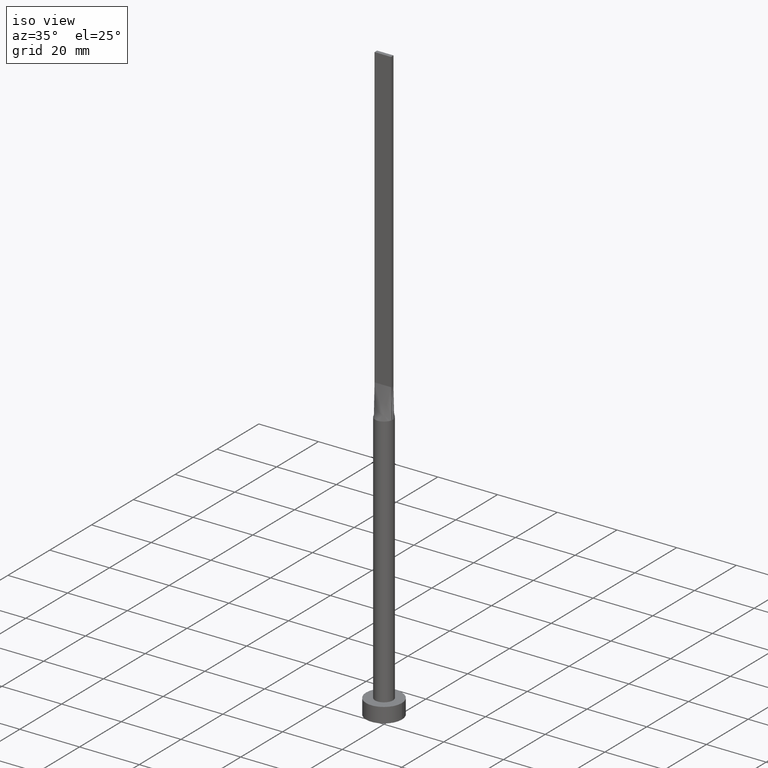
[diagram: clean part render]
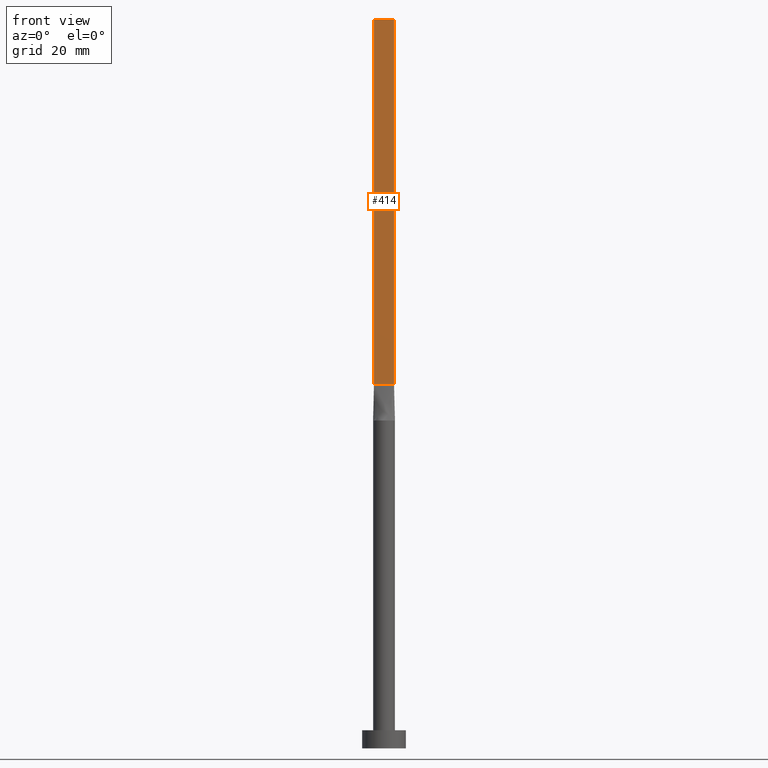
[diagram: tour spotlight — one face highlighted and labeled with its STEP entity id]
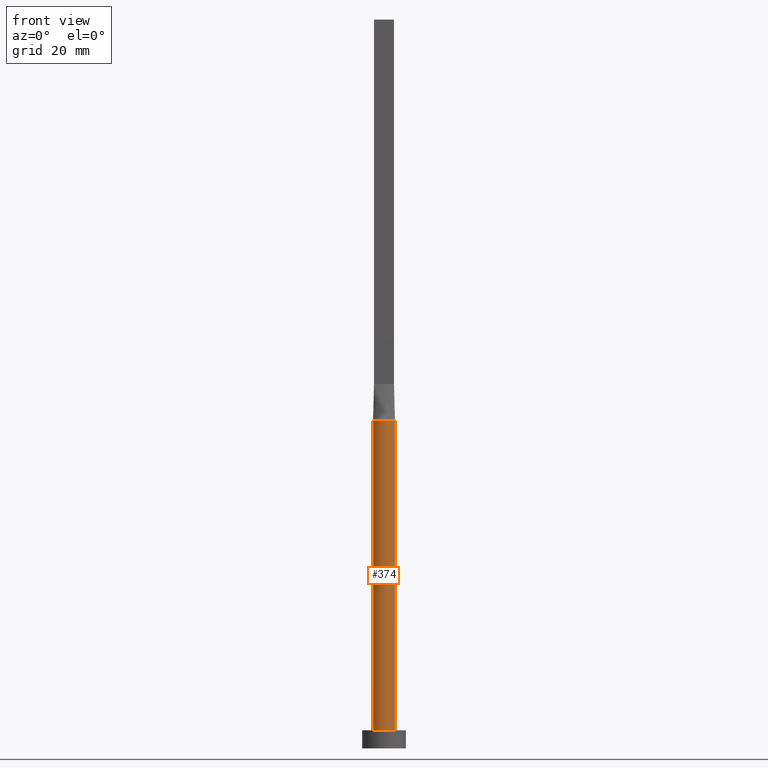
[diagram: tour spotlight — one face highlighted and labeled with its STEP entity id]
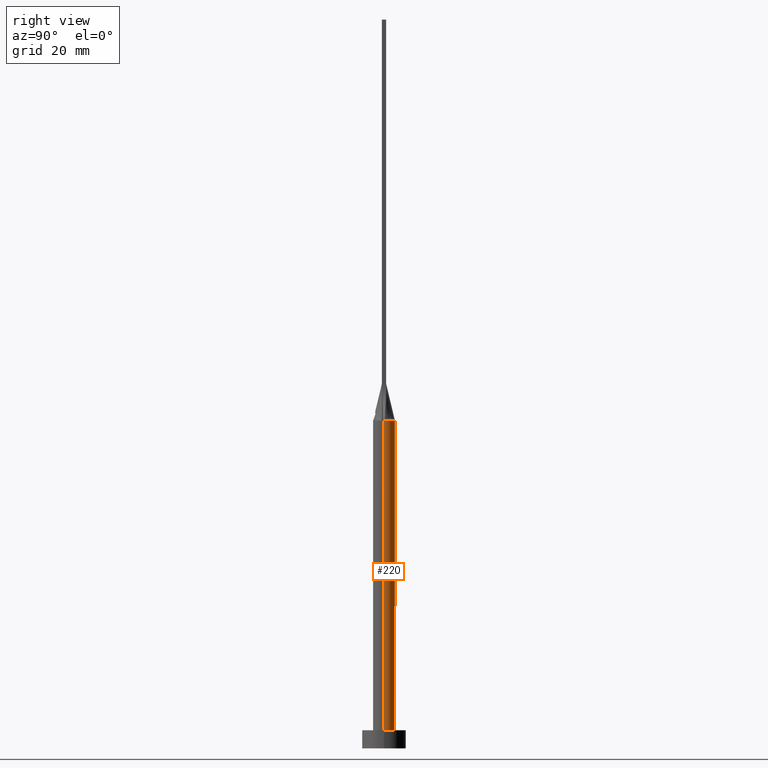
[diagram: tour spotlight — one face highlighted and labeled with its STEP entity id]
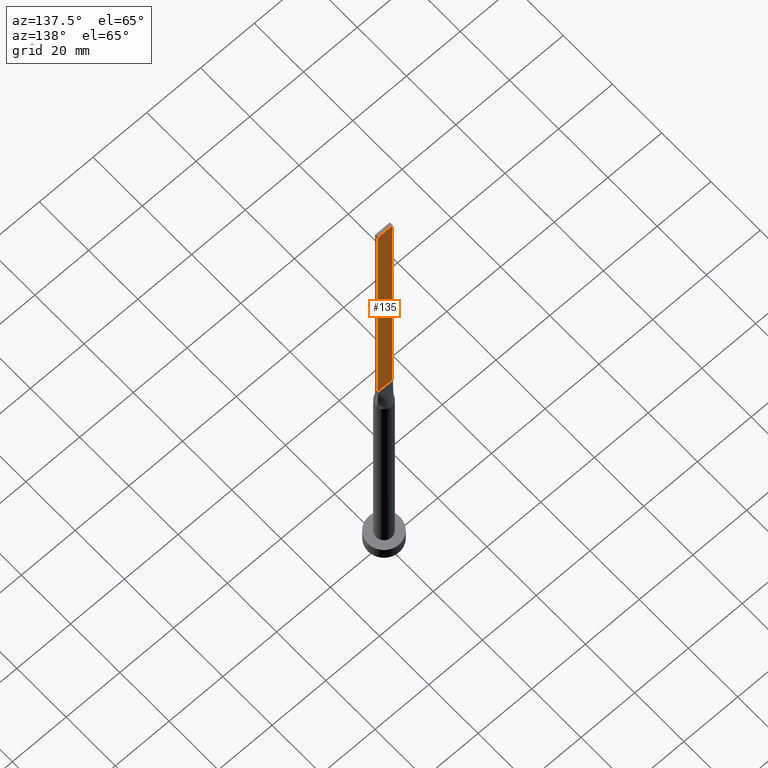
[diagram: tour spotlight — one face highlighted and labeled with its STEP entity id]
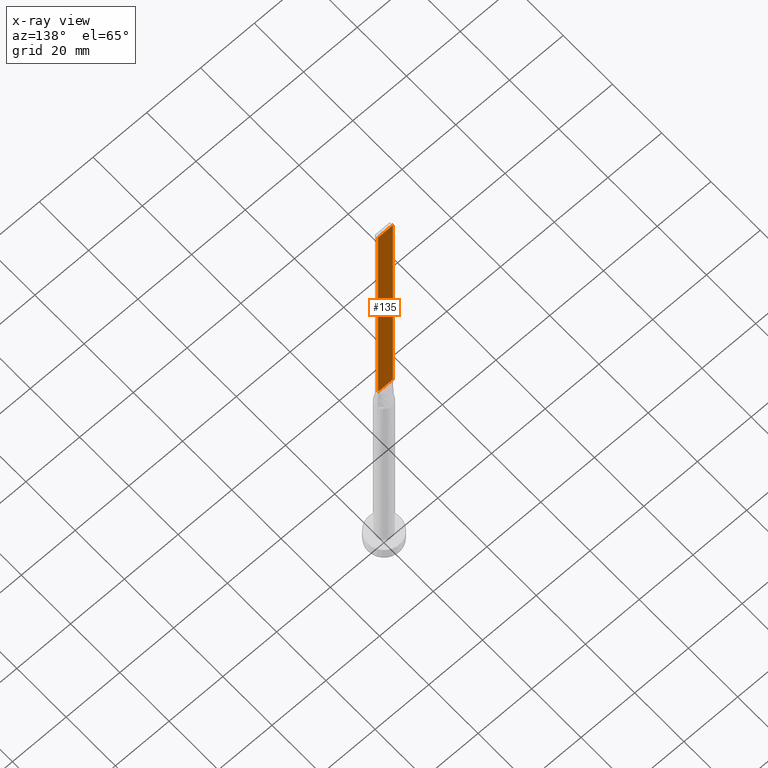
[diagram: x-ray of the same camera — body ghosted, this tour face saturated]
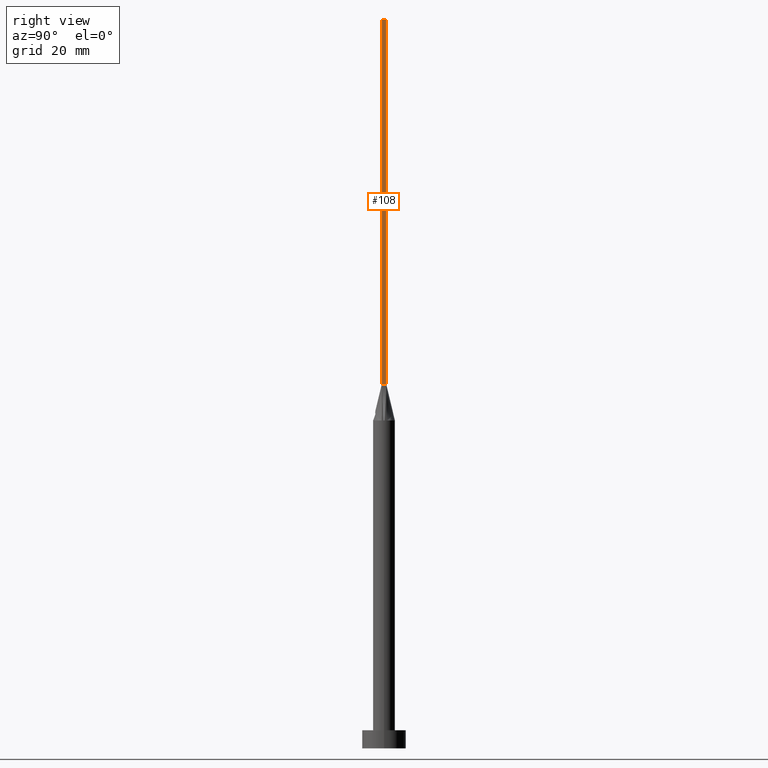
[diagram: tour spotlight — one face highlighted and labeled with its STEP entity id]
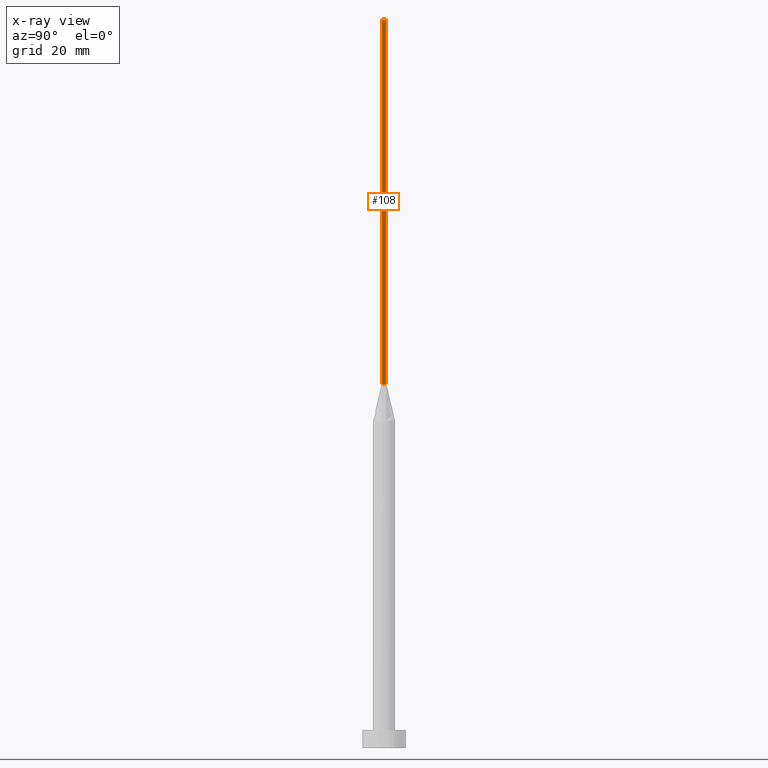
[diagram: x-ray of the same camera — body ghosted, this tour face saturated]
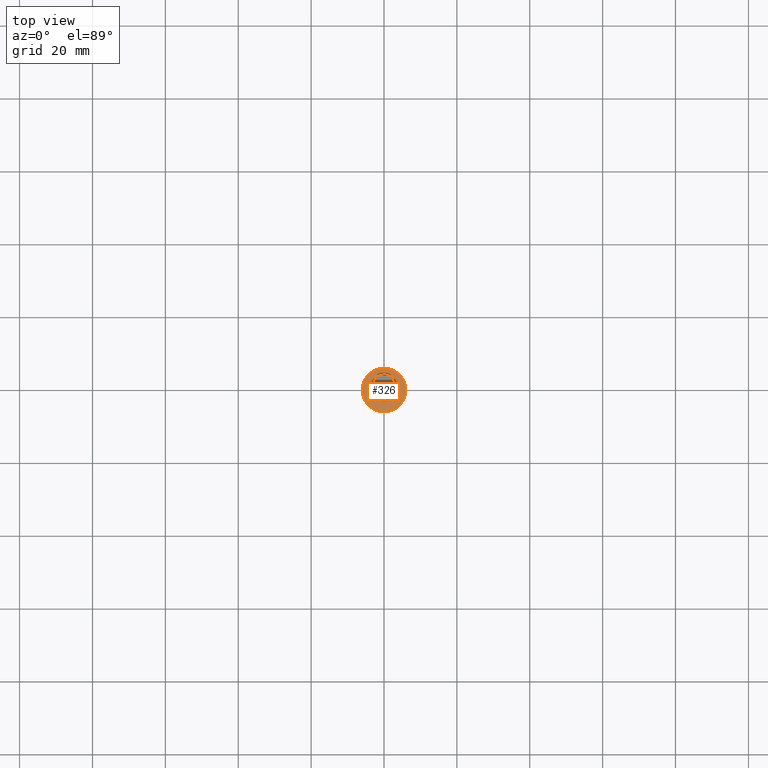
[diagram: tour spotlight — one face highlighted and labeled with its STEP entity id]
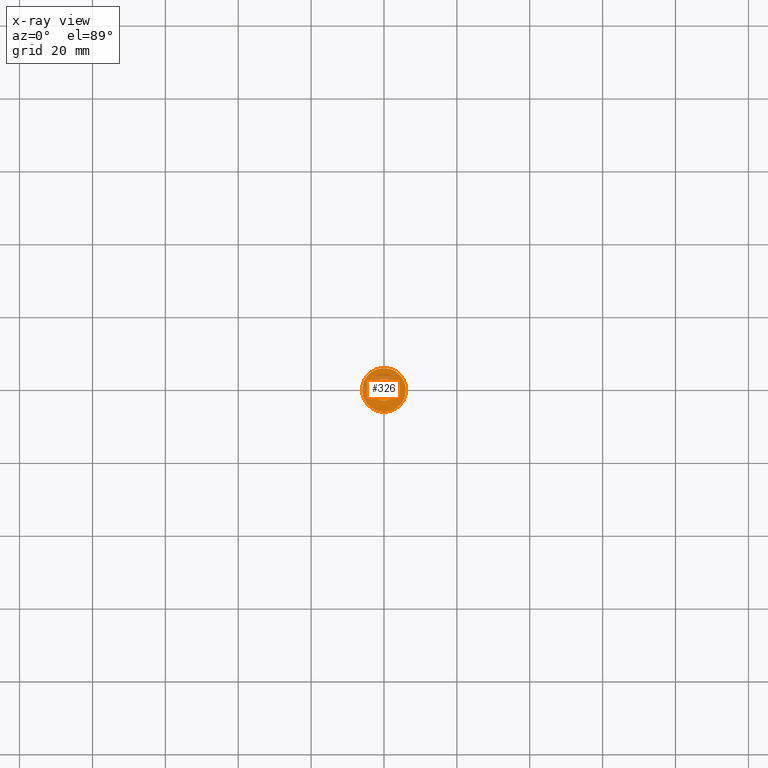
[diagram: x-ray of the same camera — body ghosted, this tour face saturated]
A machine part: a face-by-face anatomy tour. The part has 15 B-rep faces; the first image is the clean iso view, then the 6 largest visible faces are spotlighted one at a time (largest first), each with its STEP entity span.

Face 1 — front view, entity #414. In plain terms, the highlighted planar face has unit normal (0, 1, -0).
Definition (entity closure, byte-faithful):
#20 = VECTOR ( 'NONE', #99, 1000.000000000000000 ) ;
#29 = FACE_OUTER_BOUND ( 'NONE', #100, .T. ) ;
#33 = CARTESIAN_POINT ( 'NONE',  ( -2.750000000000000000, -0.5999999999999994227, 100.0000000000000000 ) ) ;
#43 = CARTESIAN_POINT ( 'NONE',  ( 2.750000000000000000, -0.5999999999999997558, 200.0000000000000000 ) ) ;
#80 = LINE ( 'NONE', #33, #411 ) ;
#99 = DIRECTION ( 'NONE',  ( -0.000000000000000000, -0.000000000000000000, -1.000000000000000000 ) ) ;
#100 = EDGE_LOOP ( 'NONE', ( #385, #327, #164, #496 ) ) ;
#164 = ORIENTED_EDGE ( 'NONE', *, *, #207, .F. ) ;
#179 = PLANE ( 'NONE',  #305 ) ;
#191 = CARTESIAN_POINT ( 'NONE',  ( -2.750000000000000000, -0.5999999999999994227, 200.0000000000000000 ) ) ;
#193 = VECTOR ( 'NONE', #508, 1000.000000000000000 ) ;
#197 = LINE ( 'NONE', #578, #283 ) ;
#198 = VERTEX_POINT ( 'NONE', #191 ) ;
#203 = VERTEX_POINT ( 'NONE', #43 ) ;
#207 = EDGE_CURVE ( 'NONE', #198, #203, #197, .T. ) ;
#214 = EDGE_CURVE ( 'NONE', #198, #433, #291, .T. ) ;
#251 = VERTEX_POINT ( 'NONE', #287 ) ;
#278 = EDGE_CURVE ( 'NONE', #203, #251, #384, .T. ) ;
#283 = VECTOR ( 'NONE', #367, 1000.000000000000000 ) ;
#287 = CARTESIAN_POINT ( 'NONE',  ( 2.750000000000000000, -0.5999999999999997558, 100.0000000000000000 ) ) ;
#291 = LINE ( 'NONE', #489, #20 ) ;
#299 = DIRECTION ( 'NONE',  ( 5.913830031739115543E-17, 1.000000000000000000, -0.000000000000000000 ) ) ;
#305 = AXIS2_PLACEMENT_3D ( 'NONE', #432, #299, #436 ) ;
#327 = ORIENTED_EDGE ( 'NONE', *, *, #278, .F. ) ;
#333 = EDGE_CURVE ( 'NONE', #433, #251, #80, .T. ) ;
#367 = DIRECTION ( 'NONE',  ( 1.000000000000000000, -5.913830031739115543E-17, 0.000000000000000000 ) ) ;
#384 = LINE ( 'NONE', #427, #193 ) ;
#385 = ORIENTED_EDGE ( 'NONE', *, *, #333, .T. ) ;
#411 = VECTOR ( 'NONE', #531, 1000.000000000000000 ) ;
#414 = ADVANCED_FACE ( 'NONE', ( #29 ), #179, .F. ) ;
#427 = CARTESIAN_POINT ( 'NONE',  ( 2.750000000000000000, -0.5999999999999997558, 200.0000000000000000 ) ) ;
#432 = CARTESIAN_POINT ( 'NONE',  ( -2.750000000000000000, -0.5999999999999994227, 200.0000000000000000 ) ) ;
#433 = VERTEX_POINT ( 'NONE', #556 ) ;
#436 = DIRECTION ( 'NONE',  ( -1.000000000000000000, 5.913830031739115543E-17, 0.000000000000000000 ) ) ;
#489 = CARTESIAN_POINT ( 'NONE',  ( -2.750000000000000000, -0.5999999999999994227, 200.0000000000000000 ) ) ;
#496 = ORIENTED_EDGE ( 'NONE', *, *, #214, .T. ) ;
#508 = DIRECTION ( 'NONE',  ( -0.000000000000000000, -0.000000000000000000, -1.000000000000000000 ) ) ;
#531 = DIRECTION ( 'NONE',  ( 1.000000000000000000, -5.913830031739115543E-17, 0.000000000000000000 ) ) ;
#556 = CARTESIAN_POINT ( 'NONE',  ( -2.750000000000000000, -0.5999999999999994227, 100.0000000000000000 ) ) ;
#578 = CARTESIAN_POINT ( 'NONE',  ( -2.750000000000000000, -0.5999999999999994227, 200.0000000000000000 ) ) ;

Face 2 — front view, entity #374. In plain terms, the highlighted cylindrical surface (edge-blend (fillet) strip) has radius 3 mm, axis along (-0, -0, -1).
Definition (entity closure, byte-faithful):
#11 = VERTEX_POINT ( 'NONE', #250 ) ;
#31 = CARTESIAN_POINT ( 'NONE',  ( 0.000000000000000000, 0.000000000000000000, 90.00000000000001421 ) ) ;
#46 = CARTESIAN_POINT ( 'NONE',  ( 0.000000000000000000, 0.000000000000000000, 5.000000000000000000 ) ) ;
#48 = DIRECTION ( 'NONE',  ( 1.000000000000000000, 0.000000000000000000, 0.000000000000000000 ) ) ;
#49 = VERTEX_POINT ( 'NONE', #195 ) ;
#50 = ORIENTED_EDGE ( 'NONE', *, *, #98, .F. ) ;
#51 = VERTEX_POINT ( 'NONE', #200 ) ;
#57 = VERTEX_POINT ( 'NONE', #497 ) ;
#70 = EDGE_LOOP ( 'NONE', ( #50, #168, #534, #308, #510, #303 ) ) ;
#76 = EDGE_CURVE ( 'NONE', #339, #11, #406, .T. ) ;
#93 = LINE ( 'NONE', #491, #156 ) ;
#98 = EDGE_CURVE ( 'NONE', #178, #49, #93, .T. ) ;
#120 = DIRECTION ( 'NONE',  ( -0.000000000000000000, -0.000000000000000000, -1.000000000000000000 ) ) ;
#126 = EDGE_CURVE ( 'NONE', #51, #339, #148, .T. ) ;
#129 = DIRECTION ( 'NONE',  ( 1.000000000000000000, 0.000000000000000000, 0.000000000000000000 ) ) ;
#139 = AXIS2_PLACEMENT_3D ( 'NONE', #413, #239, #48 ) ;
#141 = DIRECTION ( 'NONE',  ( -0.000000000000000000, -0.000000000000000000, -1.000000000000000000 ) ) ;
#148 = CIRCLE ( 'NONE', #189, 3.000000000000000444 ) ;
#156 = VECTOR ( 'NONE', #141, 1000.000000000000000 ) ;
#159 = CARTESIAN_POINT ( 'NONE',  ( 0.000000000000000000, 0.000000000000000000, 90.00000000000001421 ) ) ;
#162 = VECTOR ( 'NONE', #485, 1000.000000000000000 ) ;
#168 = ORIENTED_EDGE ( 'NONE', *, *, #261, .F. ) ;
#178 = VERTEX_POINT ( 'NONE', #528 ) ;
#189 = AXIS2_PLACEMENT_3D ( 'NONE', #31, #219, #129 ) ;
#195 = CARTESIAN_POINT ( 'NONE',  ( 3.000000000000000444, 3.673940397442060361E-16, 5.000000000000000000 ) ) ;
#196 = CYLINDRICAL_SURFACE ( 'NONE', #521, 3.000000000000000444 ) ;
#200 = CARTESIAN_POINT ( 'NONE',  ( -2.999603793582328315, -7.025298958605770567E-16, 90.00000000000001421 ) ) ;
#219 = DIRECTION ( 'NONE',  ( 0.000000000000000000, 0.000000000000000000, 1.000000000000000000 ) ) ;
#227 = DIRECTION ( 'NONE',  ( 1.000000000000000000, 0.000000000000000000, 0.000000000000000000 ) ) ;
#236 = DIRECTION ( 'NONE',  ( 0.000000000000000000, 0.000000000000000000, 1.000000000000000000 ) ) ;
#239 = DIRECTION ( 'NONE',  ( 0.000000000000000000, 0.000000000000000000, 1.000000000000000000 ) ) ;
#250 = CARTESIAN_POINT ( 'NONE',  ( 2.931332910560268790, -0.6395638358681950963, 90.00000000000001421 ) ) ;
#252 = EDGE_CURVE ( 'NONE', #57, #49, #529, .T. ) ;
#261 = EDGE_CURVE ( 'NONE', #11, #178, #363, .T. ) ;
#286 = FACE_OUTER_BOUND ( 'NONE', #70, .T. ) ;
#296 = AXIS2_PLACEMENT_3D ( 'NONE', #46, #236, #227 ) ;
#303 = ORIENTED_EDGE ( 'NONE', *, *, #252, .T. ) ;
#308 = ORIENTED_EDGE ( 'NONE', *, *, #126, .F. ) ;
#324 = CARTESIAN_POINT ( 'NONE',  ( 0.000000000000000000, 0.000000000000000000, 90.00000000000001421 ) ) ;
#339 = VERTEX_POINT ( 'NONE', #378 ) ;
#348 = CARTESIAN_POINT ( 'NONE',  ( -3.000000000000000444, 0.000000000000000000, 90.00000000000001421 ) ) ;
#363 = CIRCLE ( 'NONE', #437, 3.000000000000000444 ) ;
#374 = ADVANCED_FACE ( 'NONE', ( #286 ), #196, .T. ) ;
#378 = CARTESIAN_POINT ( 'NONE',  ( -2.931315536094174057, -0.6395601373676296220, 90.00000000000001421 ) ) ;
#390 = DIRECTION ( 'NONE',  ( -1.000000000000000000, 0.000000000000000000, 0.000000000000000000 ) ) ;
#404 = DIRECTION ( 'NONE',  ( 0.000000000000000000, 0.000000000000000000, 1.000000000000000000 ) ) ;
#406 = CIRCLE ( 'NONE', #139, 3.000000000000000444 ) ;
#413 = CARTESIAN_POINT ( 'NONE',  ( 0.000000000000000000, 0.000000000000000000, 90.00000000000001421 ) ) ;
#437 = AXIS2_PLACEMENT_3D ( 'NONE', #324, #404, #572 ) ;
#485 = DIRECTION ( 'NONE',  ( -0.000000000000000000, -0.000000000000000000, -1.000000000000000000 ) ) ;
#491 = CARTESIAN_POINT ( 'NONE',  ( 3.000000000000000444, 3.673940397442060361E-16, 90.00000000000001421 ) ) ;
#495 = EDGE_CURVE ( 'NONE', #51, #57, #564, .T. ) ;
#497 = CARTESIAN_POINT ( 'NONE',  ( -3.000000000000000444, 0.000000000000000000, 5.000000000000000000 ) ) ;
#510 = ORIENTED_EDGE ( 'NONE', *, *, #495, .T. ) ;
#521 = AXIS2_PLACEMENT_3D ( 'NONE', #159, #120, #390 ) ;
#528 = CARTESIAN_POINT ( 'NONE',  ( 2.999603793582328759, 7.166726372340513095E-16, 90.00000000000001421 ) ) ;
#529 = CIRCLE ( 'NONE', #296, 3.000000000000000444 ) ;
#534 = ORIENTED_EDGE ( 'NONE', *, *, #76, .F. ) ;
#564 = LINE ( 'NONE', #348, #162 ) ;
#572 = DIRECTION ( 'NONE',  ( 1.000000000000000000, -8.881784197001252323E-15, 0.000000000000000000 ) ) ;

Face 3 — right view, entity #220. In plain terms, the highlighted cylindrical surface (edge-blend (fillet) strip) has radius 3 mm, axis along (-0, -0, -1).
Definition (entity closure, byte-faithful):
#1 = CARTESIAN_POINT ( 'NONE',  ( 2.878980386154874616, 0.8781411751610636029, 90.00000000000002842 ) ) ;
#10 = CARTESIAN_POINT ( 'NONE',  ( 1.829136458871247761, 2.402980488111650992, 89.99999999999997158 ) ) ;
#23 = CARTESIAN_POINT ( 'NONE',  ( -0.4026715616377299356, 2.999999999999999556, 89.99999999999998579 ) ) ;
#39 = EDGE_CURVE ( 'NONE', #178, #111, #565, .T. ) ;
#44 = CARTESIAN_POINT ( 'NONE',  ( 2.792624347712116872, 1.135030881087315979, 90.00000000000001421 ) ) ;
#45 = CARTESIAN_POINT ( 'NONE',  ( 0.000000000000000000, 0.000000000000000000, 5.000000000000000000 ) ) ;
#49 = VERTEX_POINT ( 'NONE', #195 ) ;
#51 = VERTEX_POINT ( 'NONE', #200 ) ;
#57 = VERTEX_POINT ( 'NONE', #497 ) ;
#64 = ORIENTED_EDGE ( 'NONE', *, *, #349, .T. ) ;
#71 = DIRECTION ( 'NONE',  ( 0.000000000000000000, 0.000000000000000000, 1.000000000000000000 ) ) ;
#81 = CIRCLE ( 'NONE', #160, 3.000000000000000444 ) ;
#84 = B_SPLINE_CURVE_WITH_KNOTS ( 'NONE', 3,
 ( #293, #1, #44, #415, #486, #10, #318, #235, #408, #23, #423, #204, #421, #259, #170, #331, #376, #543 ),
 .UNSPECIFIED., .F., .F.,
 ( 4, 2, 2, 2, 2, 2, 2, 2, 4 ),
 ( 0.000000000000000000, 0.1250000000000000000, 0.2500000000000000000, 0.3750000000000000000, 0.5000000000000000000, 0.6250000000000000000, 0.7500000000000000000, 0.8750000000000000000, 1.000000000000000000 ),
 .UNSPECIFIED. ) ;
#90 = CIRCLE ( 'NONE', #365, 3.000000000000000444 ) ;
#91 = DIRECTION ( 'NONE',  ( 1.000000000000000000, 0.000000000000000000, 0.000000000000000000 ) ) ;
#93 = LINE ( 'NONE', #491, #156 ) ;
#96 = DIRECTION ( 'NONE',  ( -0.000000000000000000, -0.000000000000000000, -1.000000000000000000 ) ) ;
#98 = EDGE_CURVE ( 'NONE', #178, #49, #93, .T. ) ;
#103 = EDGE_CURVE ( 'NONE', #111, #449, #84, .T. ) ;
#111 = VERTEX_POINT ( 'NONE', #311 ) ;
#133 = DIRECTION ( 'NONE',  ( 0.000000000000000000, 0.000000000000000000, 1.000000000000000000 ) ) ;
#141 = DIRECTION ( 'NONE',  ( -0.000000000000000000, -0.000000000000000000, -1.000000000000000000 ) ) ;
#152 = CYLINDRICAL_SURFACE ( 'NONE', #465, 3.000000000000000444 ) ;
#156 = VECTOR ( 'NONE', #141, 1000.000000000000000 ) ;
#160 = AXIS2_PLACEMENT_3D ( 'NONE', #45, #274, #91 ) ;
#162 = VECTOR ( 'NONE', #485, 1000.000000000000000 ) ;
#170 = CARTESIAN_POINT ( 'NONE',  ( -2.518011668798964653, 1.657305971825549840, 90.00000000000002842 ) ) ;
#172 = CARTESIAN_POINT ( 'NONE',  ( -2.931320679040856803, 0.6395611071856786012, 90.00000000000001421 ) ) ;
#178 = VERTEX_POINT ( 'NONE', #528 ) ;
#195 = CARTESIAN_POINT ( 'NONE',  ( 3.000000000000000444, 3.673940397442060361E-16, 5.000000000000000000 ) ) ;
#199 = FACE_OUTER_BOUND ( 'NONE', #344, .T. ) ;
#200 = CARTESIAN_POINT ( 'NONE',  ( -2.999603793582328315, -7.025298958605770567E-16, 90.00000000000001421 ) ) ;
#204 = CARTESIAN_POINT ( 'NONE',  ( -1.517787371616671654, 2.616501225271827380, 90.00000000000004263 ) ) ;
#220 = ADVANCED_FACE ( 'NONE', ( #199 ), #152, .T. ) ;
#234 = AXIS2_PLACEMENT_3D ( 'NONE', #520, #133, #524 ) ;
#235 = CARTESIAN_POINT ( 'NONE',  ( 0.8041209001220689379, 2.916015559847871863, 90.00000000000004263 ) ) ;
#259 = CARTESIAN_POINT ( 'NONE',  ( -2.328745122427008152, 1.922758842442225280, 89.99999999999997158 ) ) ;
#274 = DIRECTION ( 'NONE',  ( 0.000000000000000000, 0.000000000000000000, 1.000000000000000000 ) ) ;
#282 = DIRECTION ( 'NONE',  ( -1.000000000000000000, 0.000000000000000000, 0.000000000000000000 ) ) ;
#293 = CARTESIAN_POINT ( 'NONE',  ( 2.931303352270923757, 0.6395574164693091923, 90.00000000000001421 ) ) ;
#300 = ORIENTED_EDGE ( 'NONE', *, *, #98, .T. ) ;
#311 = CARTESIAN_POINT ( 'NONE',  ( 2.931303352270923757, 0.6395574164693091923, 90.00000000000001421 ) ) ;
#318 = CARTESIAN_POINT ( 'NONE',  ( 1.517787371616672099, 2.616501225271827824, 90.00000000000004263 ) ) ;
#331 = CARTESIAN_POINT ( 'NONE',  ( -2.792624347712117761, 1.135030881087315313, 90.00000000000001421 ) ) ;
#344 = EDGE_LOOP ( 'NONE', ( #539, #300, #64, #498, #506, #511 ) ) ;
#348 = CARTESIAN_POINT ( 'NONE',  ( -3.000000000000000444, 0.000000000000000000, 90.00000000000001421 ) ) ;
#349 = EDGE_CURVE ( 'NONE', #49, #57, #81, .T. ) ;
#364 = CARTESIAN_POINT ( 'NONE',  ( 0.000000000000000000, 0.000000000000000000, 90.00000000000001421 ) ) ;
#365 = AXIS2_PLACEMENT_3D ( 'NONE', #547, #71, #551 ) ;
#376 = CARTESIAN_POINT ( 'NONE',  ( -2.878980386154874616, 0.8781411751610629368, 90.00000000000005684 ) ) ;
#408 = CARTESIAN_POINT ( 'NONE',  ( 0.4026715616377294915, 2.999999999999999556, 90.00000000000001421 ) ) ;
#415 = CARTESIAN_POINT ( 'NONE',  ( 2.518011668798964209, 1.657305971825549840, 90.00000000000001421 ) ) ;
#421 = CARTESIAN_POINT ( 'NONE',  ( -1.829136458871247761, 2.402980488111649660, 89.99999999999998579 ) ) ;
#423 = CARTESIAN_POINT ( 'NONE',  ( -0.8041209001220690489, 2.916015559847871419, 90.00000000000002842 ) ) ;
#439 = EDGE_CURVE ( 'NONE', #449, #51, #90, .T. ) ;
#449 = VERTEX_POINT ( 'NONE', #172 ) ;
#465 = AXIS2_PLACEMENT_3D ( 'NONE', #364, #96, #282 ) ;
#485 = DIRECTION ( 'NONE',  ( -0.000000000000000000, -0.000000000000000000, -1.000000000000000000 ) ) ;
#486 = CARTESIAN_POINT ( 'NONE',  ( 2.328745122427009040, 1.922758842442225946, 90.00000000000000000 ) ) ;
#491 = CARTESIAN_POINT ( 'NONE',  ( 3.000000000000000444, 3.673940397442060361E-16, 90.00000000000001421 ) ) ;
#495 = EDGE_CURVE ( 'NONE', #51, #57, #564, .T. ) ;
#497 = CARTESIAN_POINT ( 'NONE',  ( -3.000000000000000444, 0.000000000000000000, 5.000000000000000000 ) ) ;
#498 = ORIENTED_EDGE ( 'NONE', *, *, #495, .F. ) ;
#506 = ORIENTED_EDGE ( 'NONE', *, *, #439, .F. ) ;
#511 = ORIENTED_EDGE ( 'NONE', *, *, #103, .F. ) ;
#520 = CARTESIAN_POINT ( 'NONE',  ( 0.000000000000000000, 0.000000000000000000, 90.00000000000001421 ) ) ;
#524 = DIRECTION ( 'NONE',  ( 1.000000000000000000, 0.000000000000000000, 0.000000000000000000 ) ) ;
#528 = CARTESIAN_POINT ( 'NONE',  ( 2.999603793582328759, 7.166726372340513095E-16, 90.00000000000001421 ) ) ;
#539 = ORIENTED_EDGE ( 'NONE', *, *, #39, .F. ) ;
#543 = CARTESIAN_POINT ( 'NONE',  ( -2.931320679040856803, 0.6395611071856786012, 90.00000000000001421 ) ) ;
#547 = CARTESIAN_POINT ( 'NONE',  ( 0.000000000000000000, 0.000000000000000000, 90.00000000000001421 ) ) ;
#551 = DIRECTION ( 'NONE',  ( 1.000000000000000000, 0.000000000000000000, 0.000000000000000000 ) ) ;
#564 = LINE ( 'NONE', #348, #162 ) ;
#565 = CIRCLE ( 'NONE', #234, 3.000000000000000444 ) ;

Face 4 — auxiliary view, entity #135. An x-ray twin of the same camera follows (body ghosted, this face saturated) — the face is partly hidden behind the body. In plain terms, the highlighted planar face has unit normal (0, -1, 0).
Definition (entity closure, byte-faithful):
#5 = ORIENTED_EDGE ( 'NONE', *, *, #288, .T. ) ;
#19 = DIRECTION ( 'NONE',  ( -1.000000000000000000, 0.000000000000000000, 0.000000000000000000 ) ) ;
#52 = VERTEX_POINT ( 'NONE', #284 ) ;
#135 = ADVANCED_FACE ( 'NONE', ( #398 ), #176, .F. ) ;
#149 = EDGE_LOOP ( 'NONE', ( #215, #285, #241, #5 ) ) ;
#173 = CARTESIAN_POINT ( 'NONE',  ( -2.750000000000000000, 0.6000000000000001998, 200.0000000000000000 ) ) ;
#176 = PLANE ( 'NONE',  #243 ) ;
#186 = DIRECTION ( 'NONE',  ( 0.000000000000000000, -0.000000000000000000, -1.000000000000000000 ) ) ;
#201 = VECTOR ( 'NONE', #271, 1000.000000000000000 ) ;
#215 = ORIENTED_EDGE ( 'NONE', *, *, #487, .T. ) ;
#221 = CARTESIAN_POINT ( 'NONE',  ( -2.750000000000000000, 0.6000000000000001998, 100.0000000000000000 ) ) ;
#241 = ORIENTED_EDGE ( 'NONE', *, *, #480, .F. ) ;
#243 = AXIS2_PLACEMENT_3D ( 'NONE', #484, #270, #186 ) ;
#245 = VERTEX_POINT ( 'NONE', #407 ) ;
#267 = VECTOR ( 'NONE', #301, 1000.000000000000000 ) ;
#268 = LINE ( 'NONE', #173, #409 ) ;
#270 = DIRECTION ( 'NONE',  ( 0.000000000000000000, -1.000000000000000000, 0.000000000000000000 ) ) ;
#271 = DIRECTION ( 'NONE',  ( -1.000000000000000000, -0.000000000000000000, -0.000000000000000000 ) ) ;
#276 = VECTOR ( 'NONE', #19, 1000.000000000000000 ) ;
#284 = CARTESIAN_POINT ( 'NONE',  ( -2.750000000000000000, 0.6000000000000001998, 100.0000000000000000 ) ) ;
#285 = ORIENTED_EDGE ( 'NONE', *, *, #320, .F. ) ;
#288 = EDGE_CURVE ( 'NONE', #545, #245, #420, .T. ) ;
#301 = DIRECTION ( 'NONE',  ( -0.000000000000000000, -0.000000000000000000, -1.000000000000000000 ) ) ;
#320 = EDGE_CURVE ( 'NONE', #419, #52, #268, .T. ) ;
#325 = CARTESIAN_POINT ( 'NONE',  ( 2.750000000000000000, 0.6000000000000001998, 200.0000000000000000 ) ) ;
#386 = CARTESIAN_POINT ( 'NONE',  ( -2.750000000000000000, 0.6000000000000001998, 200.0000000000000000 ) ) ;
#391 = DIRECTION ( 'NONE',  ( -0.000000000000000000, -0.000000000000000000, -1.000000000000000000 ) ) ;
#398 = FACE_OUTER_BOUND ( 'NONE', #149, .T. ) ;
#407 = CARTESIAN_POINT ( 'NONE',  ( 2.750000000000000000, 0.6000000000000001998, 100.0000000000000000 ) ) ;
#409 = VECTOR ( 'NONE', #391, 1000.000000000000000 ) ;
#419 = VERTEX_POINT ( 'NONE', #386 ) ;
#420 = LINE ( 'NONE', #325, #267 ) ;
#426 = CARTESIAN_POINT ( 'NONE',  ( 2.750000000000000000, 0.6000000000000001998, 200.0000000000000000 ) ) ;
#441 = LINE ( 'NONE', #221, #201 ) ;
#480 = EDGE_CURVE ( 'NONE', #545, #419, #502, .T. ) ;
#484 = CARTESIAN_POINT ( 'NONE',  ( 2.750000000000000000, 0.6000000000000001998, 200.0000000000000000 ) ) ;
#487 = EDGE_CURVE ( 'NONE', #245, #52, #441, .T. ) ;
#502 = LINE ( 'NONE', #426, #276 ) ;
#545 = VERTEX_POINT ( 'NONE', #560 ) ;
#560 = CARTESIAN_POINT ( 'NONE',  ( 2.750000000000000000, 0.6000000000000001998, 200.0000000000000000 ) ) ;

Face 5 — right view, entity #108. An x-ray twin of the same camera follows (body ghosted, this face saturated) — the face is partly hidden behind the body. In plain terms, the highlighted planar face has unit normal (-1, 0, 0).
Definition (entity closure, byte-faithful):
#4 = CARTESIAN_POINT ( 'NONE',  ( 2.750000000000000000, 0.6000000000000001998, 100.0000000000000000 ) ) ;
#6 = CARTESIAN_POINT ( 'NONE',  ( 2.750000000000000000, -0.5999999999999997558, 200.0000000000000000 ) ) ;
#16 = ORIENTED_EDGE ( 'NONE', *, *, #240, .F. ) ;
#18 = PLANE ( 'NONE',  #87 ) ;
#43 = CARTESIAN_POINT ( 'NONE',  ( 2.750000000000000000, -0.5999999999999997558, 200.0000000000000000 ) ) ;
#62 = DIRECTION ( 'NONE',  ( -1.000000000000000000, 0.000000000000000000, 0.000000000000000000 ) ) ;
#87 = AXIS2_PLACEMENT_3D ( 'NONE', #206, #62, #428 ) ;
#102 = EDGE_LOOP ( 'NONE', ( #471, #368, #16, #493 ) ) ;
#108 = ADVANCED_FACE ( 'NONE', ( #501 ), #18, .F. ) ;
#116 = VECTOR ( 'NONE', #147, 1000.000000000000000 ) ;
#140 = DIRECTION ( 'NONE',  ( -0.000000000000000000, 1.000000000000000000, -0.000000000000000000 ) ) ;
#147 = DIRECTION ( 'NONE',  ( 0.000000000000000000, 1.000000000000000000, 0.000000000000000000 ) ) ;
#182 = EDGE_CURVE ( 'NONE', #251, #245, #238, .T. ) ;
#193 = VECTOR ( 'NONE', #508, 1000.000000000000000 ) ;
#203 = VERTEX_POINT ( 'NONE', #43 ) ;
#206 = CARTESIAN_POINT ( 'NONE',  ( 2.750000000000000000, -0.5999999999999997558, 200.0000000000000000 ) ) ;
#238 = LINE ( 'NONE', #4, #517 ) ;
#240 = EDGE_CURVE ( 'NONE', #203, #545, #533, .T. ) ;
#245 = VERTEX_POINT ( 'NONE', #407 ) ;
#251 = VERTEX_POINT ( 'NONE', #287 ) ;
#267 = VECTOR ( 'NONE', #301, 1000.000000000000000 ) ;
#278 = EDGE_CURVE ( 'NONE', #203, #251, #384, .T. ) ;
#287 = CARTESIAN_POINT ( 'NONE',  ( 2.750000000000000000, -0.5999999999999997558, 100.0000000000000000 ) ) ;
#288 = EDGE_CURVE ( 'NONE', #545, #245, #420, .T. ) ;
#301 = DIRECTION ( 'NONE',  ( -0.000000000000000000, -0.000000000000000000, -1.000000000000000000 ) ) ;
#325 = CARTESIAN_POINT ( 'NONE',  ( 2.750000000000000000, 0.6000000000000001998, 200.0000000000000000 ) ) ;
#368 = ORIENTED_EDGE ( 'NONE', *, *, #288, .F. ) ;
#384 = LINE ( 'NONE', #427, #193 ) ;
#407 = CARTESIAN_POINT ( 'NONE',  ( 2.750000000000000000, 0.6000000000000001998, 100.0000000000000000 ) ) ;
#420 = LINE ( 'NONE', #325, #267 ) ;
#427 = CARTESIAN_POINT ( 'NONE',  ( 2.750000000000000000, -0.5999999999999997558, 200.0000000000000000 ) ) ;
#428 = DIRECTION ( 'NONE',  ( 0.000000000000000000, 0.000000000000000000, 1.000000000000000000 ) ) ;
#471 = ORIENTED_EDGE ( 'NONE', *, *, #182, .T. ) ;
#493 = ORIENTED_EDGE ( 'NONE', *, *, #278, .T. ) ;
#501 = FACE_OUTER_BOUND ( 'NONE', #102, .T. ) ;
#508 = DIRECTION ( 'NONE',  ( -0.000000000000000000, -0.000000000000000000, -1.000000000000000000 ) ) ;
#517 = VECTOR ( 'NONE', #140, 1000.000000000000000 ) ;
#533 = LINE ( 'NONE', #6, #116 ) ;
#545 = VERTEX_POINT ( 'NONE', #560 ) ;
#560 = CARTESIAN_POINT ( 'NONE',  ( 2.750000000000000000, 0.6000000000000001998, 200.0000000000000000 ) ) ;

Face 6 — top view, entity #326. An x-ray twin of the same camera follows (body ghosted, this face saturated) — the face is partly hidden behind the body. In plain terms, the highlighted planar face has unit normal (0, 0, 1).
Definition (entity closure, byte-faithful):
#12 = ORIENTED_EDGE ( 'NONE', *, *, #14, .T. ) ;
#14 = EDGE_CURVE ( 'NONE', #458, #248, #575, .T. ) ;
#45 = CARTESIAN_POINT ( 'NONE',  ( 0.000000000000000000, 0.000000000000000000, 5.000000000000000000 ) ) ;
#46 = CARTESIAN_POINT ( 'NONE',  ( 0.000000000000000000, 0.000000000000000000, 5.000000000000000000 ) ) ;
#49 = VERTEX_POINT ( 'NONE', #195 ) ;
#57 = VERTEX_POINT ( 'NONE', #497 ) ;
#66 = EDGE_LOOP ( 'NONE', ( #290, #12 ) ) ;
#77 = PLANE ( 'NONE',  #329 ) ;
#79 = DIRECTION ( 'NONE',  ( 1.000000000000000000, 0.000000000000000000, 0.000000000000000000 ) ) ;
#81 = CIRCLE ( 'NONE', #160, 3.000000000000000444 ) ;
#91 = DIRECTION ( 'NONE',  ( 1.000000000000000000, 0.000000000000000000, 0.000000000000000000 ) ) ;
#123 = CARTESIAN_POINT ( 'NONE',  ( 0.000000000000000000, 0.000000000000000000, 5.000000000000000000 ) ) ;
#128 = AXIS2_PLACEMENT_3D ( 'NONE', #123, #473, #79 ) ;
#132 = CARTESIAN_POINT ( 'NONE',  ( 0.000000000000000000, 0.000000000000000000, 5.000000000000000000 ) ) ;
#145 = EDGE_LOOP ( 'NONE', ( #323, #372 ) ) ;
#153 = EDGE_CURVE ( 'NONE', #248, #458, #312, .T. ) ;
#160 = AXIS2_PLACEMENT_3D ( 'NONE', #45, #274, #91 ) ;
#195 = CARTESIAN_POINT ( 'NONE',  ( 3.000000000000000444, 3.673940397442060361E-16, 5.000000000000000000 ) ) ;
#227 = DIRECTION ( 'NONE',  ( 1.000000000000000000, 0.000000000000000000, 0.000000000000000000 ) ) ;
#228 = DIRECTION ( 'NONE',  ( 0.000000000000000000, 0.000000000000000000, 1.000000000000000000 ) ) ;
#236 = DIRECTION ( 'NONE',  ( 0.000000000000000000, 0.000000000000000000, 1.000000000000000000 ) ) ;
#248 = VERTEX_POINT ( 'NONE', #369 ) ;
#252 = EDGE_CURVE ( 'NONE', #57, #49, #529, .T. ) ;
#274 = DIRECTION ( 'NONE',  ( 0.000000000000000000, 0.000000000000000000, 1.000000000000000000 ) ) ;
#290 = ORIENTED_EDGE ( 'NONE', *, *, #153, .T. ) ;
#296 = AXIS2_PLACEMENT_3D ( 'NONE', #46, #236, #227 ) ;
#309 = FACE_BOUND ( 'NONE', #145, .T. ) ;
#312 = CIRCLE ( 'NONE', #128, 6.000000000000000888 ) ;
#323 = ORIENTED_EDGE ( 'NONE', *, *, #252, .F. ) ;
#326 = ADVANCED_FACE ( 'NONE', ( #309, #396 ), #77, .T. ) ;
#329 = AXIS2_PLACEMENT_3D ( 'NONE', #132, #346, #478 ) ;
#346 = DIRECTION ( 'NONE',  ( 0.000000000000000000, 0.000000000000000000, 1.000000000000000000 ) ) ;
#349 = EDGE_CURVE ( 'NONE', #49, #57, #81, .T. ) ;
#360 = AXIS2_PLACEMENT_3D ( 'NONE', #377, #228, #405 ) ;
#369 = CARTESIAN_POINT ( 'NONE',  ( -6.000000000000000888, 0.000000000000000000, 5.000000000000000000 ) ) ;
#372 = ORIENTED_EDGE ( 'NONE', *, *, #349, .F. ) ;
#377 = CARTESIAN_POINT ( 'NONE',  ( 0.000000000000000000, 0.000000000000000000, 5.000000000000000000 ) ) ;
#396 = FACE_OUTER_BOUND ( 'NONE', #66, .T. ) ;
#405 = DIRECTION ( 'NONE',  ( 1.000000000000000000, 0.000000000000000000, 0.000000000000000000 ) ) ;
#458 = VERTEX_POINT ( 'NONE', #559 ) ;
#473 = DIRECTION ( 'NONE',  ( 0.000000000000000000, 0.000000000000000000, 1.000000000000000000 ) ) ;
#478 = DIRECTION ( 'NONE',  ( 1.000000000000000000, 0.000000000000000000, -0.000000000000000000 ) ) ;
#497 = CARTESIAN_POINT ( 'NONE',  ( -3.000000000000000444, 0.000000000000000000, 5.000000000000000000 ) ) ;
#529 = CIRCLE ( 'NONE', #296, 3.000000000000000444 ) ;
#559 = CARTESIAN_POINT ( 'NONE',  ( 6.000000000000000888, 7.347880794884120722E-16, 5.000000000000000000 ) ) ;
#575 = CIRCLE ( 'NONE', #360, 6.000000000000000888 ) ;